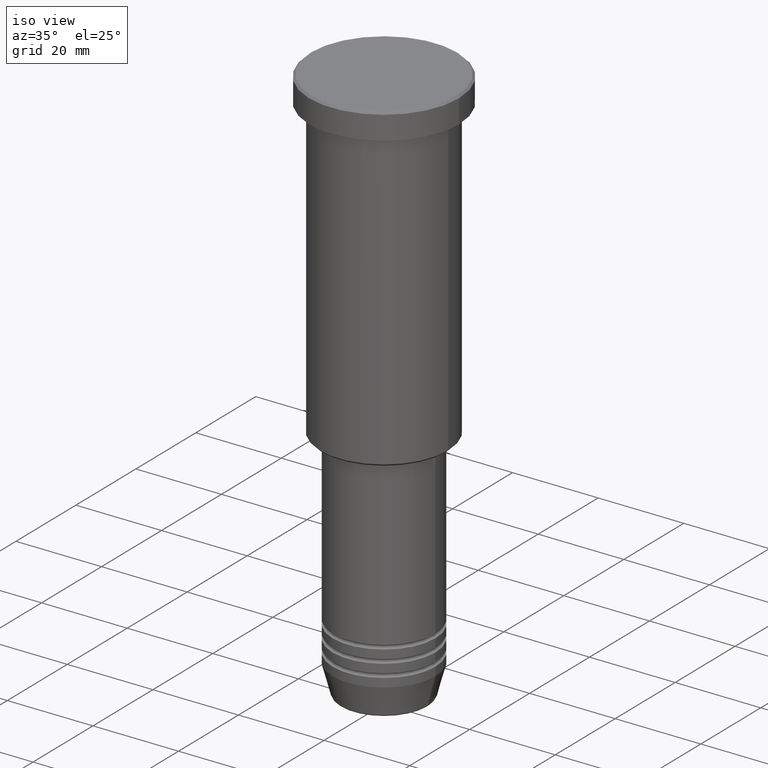
[diagram: clean part render]
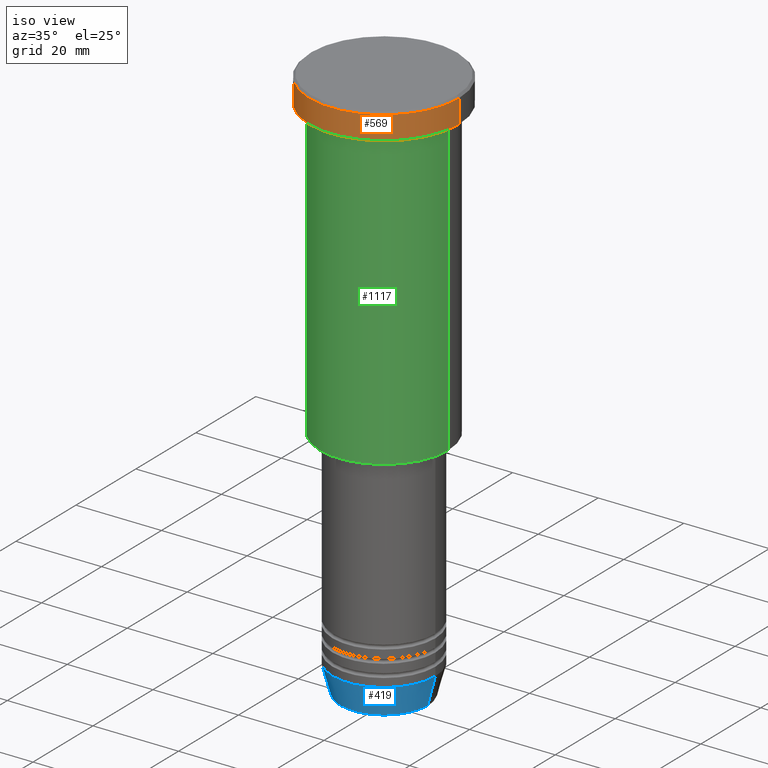
[diagram: same view with three faces highlighted in distinct colors, each labeled with its STEP entity id]
A machine part, iso view with three faces highlighted in distinct colors.
Their STEP definitions:

[orange] entity #569 — the highlighted cylindrical surface (partial cylindrical patch) has radius 17.5 mm, axis along (-0, -0, 1).
#18 = DIRECTION ( 'NONE',  ( 1.000000000000000000, 0.000000000000000000, 0.000000000000000000 ) ) ;
#89 = EDGE_CURVE ( 'NONE', #135, #1084, #361, .T. ) ;
#135 = VERTEX_POINT ( 'NONE', #488 ) ;
#200 = DIRECTION ( 'NONE',  ( -0.000000000000000000, -0.000000000000000000, 1.000000000000000000 ) ) ;
#216 = CARTESIAN_POINT ( 'NONE',  ( 17.50000000000000000, 0.000000000000000000, -0.5000000000000003331 ) ) ;
#263 = DIRECTION ( 'NONE',  ( -0.000000000000000000, -0.000000000000000000, 1.000000000000000000 ) ) ;
#315 = FACE_OUTER_BOUND ( 'NONE', #984, .T. ) ;
#343 = ORIENTED_EDGE ( 'NONE', *, *, #749, .F. ) ;
#361 = CIRCLE ( 'NONE', #662, 17.50000000000000000 ) ;
#372 = CARTESIAN_POINT ( 'NONE',  ( 17.50000000000000000, 0.000000000000000000, 0.000000000000000000 ) ) ;
#385 = ORIENTED_EDGE ( 'NONE', *, *, #89, .T. ) ;
#417 = CARTESIAN_POINT ( 'NONE',  ( -17.50000000000000000, 2.143131898507868248E-15, 0.000000000000000000 ) ) ;
#441 = VERTEX_POINT ( 'NONE', #1182 ) ;
#471 = CARTESIAN_POINT ( 'NONE',  ( 0.000000000000000000, 0.000000000000000000, -5.999999999999995559 ) ) ;
#488 = CARTESIAN_POINT ( 'NONE',  ( -17.50000000000000000, 2.143131898507868248E-15, -5.999999999999995559 ) ) ;
#569 = ADVANCED_FACE ( 'NONE', ( #315 ), #919, .T. ) ;
#620 = VERTEX_POINT ( 'NONE', #216 ) ;
#662 = AXIS2_PLACEMENT_3D ( 'NONE', #471, #263, #679 ) ;
#679 = DIRECTION ( 'NONE',  ( 1.000000000000000000, 0.000000000000000000, 0.000000000000000000 ) ) ;
#686 = DIRECTION ( 'NONE',  ( -0.000000000000000000, -0.000000000000000000, 1.000000000000000000 ) ) ;
#749 = EDGE_CURVE ( 'NONE', #135, #441, #965, .T. ) ;
#750 = DIRECTION ( 'NONE',  ( 1.000000000000000000, 0.000000000000000000, 0.000000000000000000 ) ) ;
#754 = CARTESIAN_POINT ( 'NONE',  ( 17.50000000000000000, 0.000000000000000000, -5.999999999999995559 ) ) ;
#790 = AXIS2_PLACEMENT_3D ( 'NONE', #834, #200, #750 ) ;
#791 = AXIS2_PLACEMENT_3D ( 'NONE', #1107, #844, #18 ) ;
#834 = CARTESIAN_POINT ( 'NONE',  ( 0.000000000000000000, 0.000000000000000000, 0.000000000000000000 ) ) ;
#844 = DIRECTION ( 'NONE',  ( 0.000000000000000000, 0.000000000000000000, -1.000000000000000000 ) ) ;
#901 = ORIENTED_EDGE ( 'NONE', *, *, #969, .T. ) ;
#912 = ORIENTED_EDGE ( 'NONE', *, *, #1024, .T. ) ;
#919 = CYLINDRICAL_SURFACE ( 'NONE', #790, 17.50000000000000000 ) ;
#965 = LINE ( 'NONE', #417, #1094 ) ;
#969 = EDGE_CURVE ( 'NONE', #1084, #620, #1181, .T. ) ;
#984 = EDGE_LOOP ( 'NONE', ( #343, #385, #901, #912 ) ) ;
#1024 = EDGE_CURVE ( 'NONE', #620, #441, #1133, .T. ) ;
#1071 = VECTOR ( 'NONE', #1085, 1000.000000000000000 ) ;
#1084 = VERTEX_POINT ( 'NONE', #754 ) ;
#1085 = DIRECTION ( 'NONE',  ( -0.000000000000000000, -0.000000000000000000, 1.000000000000000000 ) ) ;
#1094 = VECTOR ( 'NONE', #686, 1000.000000000000000 ) ;
#1107 = CARTESIAN_POINT ( 'NONE',  ( 0.000000000000000000, 0.000000000000000000, -0.5000000000000003331 ) ) ;
#1133 = CIRCLE ( 'NONE', #791, 17.50000000000000000 ) ;
#1181 = LINE ( 'NONE', #372, #1071 ) ;
#1182 = CARTESIAN_POINT ( 'NONE',  ( -17.50000000000000000, 2.143131898507868248E-15, -0.5000000000000003331 ) ) ;

[blue] entity #419 — the highlighted conical surface has half-angle 15 deg.
#2 = VERTEX_POINT ( 'NONE', #554 ) ;
#49 = DIRECTION ( 'NONE',  ( -0.2588190451025213501, 3.169619151431772337E-17, 0.9659258262890680902 ) ) ;
#50 = VECTOR ( 'NONE', #189, 1000.000000000000000 ) ;
#54 = CARTESIAN_POINT ( 'NONE',  ( -12.00000000000000000, 1.469576158976823947E-15, -124.0000000000000000 ) ) ;
#68 = AXIS2_PLACEMENT_3D ( 'NONE', #153, #699, #1055 ) ;
#71 = ORIENTED_EDGE ( 'NONE', *, *, #702, .T. ) ;
#103 = CIRCLE ( 'NONE', #68, 10.22365507213718949 ) ;
#153 = CARTESIAN_POINT ( 'NONE',  ( 0.000000000000000000, 0.000000000000000000, -130.6294095225512422 ) ) ;
#189 = DIRECTION ( 'NONE',  ( 0.2588190451025213501, 0.000000000000000000, 0.9659258262890680902 ) ) ;
#192 = ORIENTED_EDGE ( 'NONE', *, *, #693, .F. ) ;
#203 = VECTOR ( 'NONE', #49, 1000.000000000000000 ) ;
#240 = EDGE_CURVE ( 'NONE', #1057, #1129, #909, .T. ) ;
#327 = LINE ( 'NONE', #802, #50 ) ;
#347 = ORIENTED_EDGE ( 'NONE', *, *, #414, .T. ) ;
#382 = CONICAL_SURFACE ( 'NONE', #1035, 12.00000000000000000, 0.2617993877991500740 ) ;
#410 = EDGE_LOOP ( 'NONE', ( #192, #71, #347, #829 ) ) ;
#414 = EDGE_CURVE ( 'NONE', #2, #1129, #327, .T. ) ;
#419 = ADVANCED_FACE ( 'NONE', ( #982 ), #382, .T. ) ;
#458 = CARTESIAN_POINT ( 'NONE',  ( 0.000000000000000000, 0.000000000000000000, -124.0000000000000000 ) ) ;
#520 = LINE ( 'NONE', #54, #203 ) ;
#554 = CARTESIAN_POINT ( 'NONE',  ( 10.22365507213718949, 0.000000000000000000, -130.6294095225512422 ) ) ;
#627 = DIRECTION ( 'NONE',  ( 1.000000000000000000, 0.000000000000000000, 0.000000000000000000 ) ) ;
#656 = CARTESIAN_POINT ( 'NONE',  ( -10.22365507213718949, 1.360806402472382744E-15, -130.6294095225512422 ) ) ;
#693 = EDGE_CURVE ( 'NONE', #987, #1057, #520, .T. ) ;
#699 = DIRECTION ( 'NONE',  ( -0.000000000000000000, -0.000000000000000000, 1.000000000000000000 ) ) ;
#702 = EDGE_CURVE ( 'NONE', #987, #2, #103, .T. ) ;
#744 = DIRECTION ( 'NONE',  ( -0.000000000000000000, -0.000000000000000000, 1.000000000000000000 ) ) ;
#759 = AXIS2_PLACEMENT_3D ( 'NONE', #863, #744, #1104 ) ;
#802 = CARTESIAN_POINT ( 'NONE',  ( 12.00000000000000000, 0.000000000000000000, -124.0000000000000000 ) ) ;
#829 = ORIENTED_EDGE ( 'NONE', *, *, #240, .F. ) ;
#863 = CARTESIAN_POINT ( 'NONE',  ( 0.000000000000000000, 0.000000000000000000, -124.0000000000000000 ) ) ;
#909 = CIRCLE ( 'NONE', #759, 12.00000000000000000 ) ;
#918 = CARTESIAN_POINT ( 'NONE',  ( -12.00000000000000000, 1.469576158976823947E-15, -124.0000000000000000 ) ) ;
#955 = CARTESIAN_POINT ( 'NONE',  ( 12.00000000000000000, 0.000000000000000000, -124.0000000000000000 ) ) ;
#982 = FACE_OUTER_BOUND ( 'NONE', #410, .T. ) ;
#987 = VERTEX_POINT ( 'NONE', #656 ) ;
#1035 = AXIS2_PLACEMENT_3D ( 'NONE', #458, #1178, #627 ) ;
#1055 = DIRECTION ( 'NONE',  ( 1.000000000000000000, 0.000000000000000000, 0.000000000000000000 ) ) ;
#1057 = VERTEX_POINT ( 'NONE', #918 ) ;
#1104 = DIRECTION ( 'NONE',  ( 1.000000000000000000, 0.000000000000000000, 0.000000000000000000 ) ) ;
#1129 = VERTEX_POINT ( 'NONE', #955 ) ;
#1178 = DIRECTION ( 'NONE',  ( -0.000000000000000000, -0.000000000000000000, 1.000000000000000000 ) ) ;

[green] entity #1117 — the highlighted cylindrical surface (partial cylindrical patch) has radius 15 mm, axis along (-0, -0, 1).
#39 = EDGE_CURVE ( 'NONE', #608, #1176, #280, .T. ) ;
#59 = CARTESIAN_POINT ( 'NONE',  ( 15.00000000000000000, 0.000000000000000000, 0.000000000000000000 ) ) ;
#87 = ORIENTED_EDGE ( 'NONE', *, *, #472, .T. ) ;
#90 = DIRECTION ( 'NONE',  ( -0.000000000000000000, -0.000000000000000000, 1.000000000000000000 ) ) ;
#112 = ORIENTED_EDGE ( 'NONE', *, *, #275, .T. ) ;
#150 = EDGE_LOOP ( 'NONE', ( #935, #87, #112, #628 ) ) ;
#170 = DIRECTION ( 'NONE',  ( -0.000000000000000000, -0.000000000000000000, 1.000000000000000000 ) ) ;
#175 = LINE ( 'NONE', #902, #794 ) ;
#182 = DIRECTION ( 'NONE',  ( 1.000000000000000000, 0.000000000000000000, 0.000000000000000000 ) ) ;
#205 = AXIS2_PLACEMENT_3D ( 'NONE', #1083, #739, #182 ) ;
#275 = EDGE_CURVE ( 'NONE', #931, #1176, #966, .T. ) ;
#280 = CIRCLE ( 'NONE', #205, 15.00000000000000000 ) ;
#283 = AXIS2_PLACEMENT_3D ( 'NONE', #848, #493, #411 ) ;
#359 = AXIS2_PLACEMENT_3D ( 'NONE', #915, #170, #895 ) ;
#411 = DIRECTION ( 'NONE',  ( 1.000000000000000000, 0.000000000000000000, 0.000000000000000000 ) ) ;
#447 = CARTESIAN_POINT ( 'NONE',  ( 15.00000000000000000, 0.000000000000000000, -75.50000000000000000 ) ) ;
#472 = EDGE_CURVE ( 'NONE', #1029, #931, #582, .T. ) ;
#485 = CYLINDRICAL_SURFACE ( 'NONE', #283, 15.00000000000000000 ) ;
#493 = DIRECTION ( 'NONE',  ( -0.000000000000000000, -0.000000000000000000, 1.000000000000000000 ) ) ;
#519 = EDGE_CURVE ( 'NONE', #1029, #608, #175, .T. ) ;
#582 = CIRCLE ( 'NONE', #359, 15.00000000000000000 ) ;
#608 = VERTEX_POINT ( 'NONE', #667 ) ;
#628 = ORIENTED_EDGE ( 'NONE', *, *, #39, .F. ) ;
#667 = CARTESIAN_POINT ( 'NONE',  ( -15.00000000000000000, 1.836970198721029589E-15, -6.999999999999995559 ) ) ;
#737 = VECTOR ( 'NONE', #789, 1000.000000000000000 ) ;
#739 = DIRECTION ( 'NONE',  ( -0.000000000000000000, -0.000000000000000000, 1.000000000000000000 ) ) ;
#768 = CARTESIAN_POINT ( 'NONE',  ( 15.00000000000000000, 0.000000000000000000, -6.999999999999995559 ) ) ;
#789 = DIRECTION ( 'NONE',  ( -0.000000000000000000, -0.000000000000000000, 1.000000000000000000 ) ) ;
#794 = VECTOR ( 'NONE', #90, 1000.000000000000000 ) ;
#838 = FACE_OUTER_BOUND ( 'NONE', #150, .T. ) ;
#848 = CARTESIAN_POINT ( 'NONE',  ( 0.000000000000000000, 0.000000000000000000, 0.000000000000000000 ) ) ;
#895 = DIRECTION ( 'NONE',  ( -1.000000000000000000, 0.000000000000000000, 0.000000000000000000 ) ) ;
#902 = CARTESIAN_POINT ( 'NONE',  ( -15.00000000000000000, 1.836970198721029589E-15, 0.000000000000000000 ) ) ;
#915 = CARTESIAN_POINT ( 'NONE',  ( 0.000000000000000000, 0.000000000000000000, -75.50000000000000000 ) ) ;
#931 = VERTEX_POINT ( 'NONE', #447 ) ;
#935 = ORIENTED_EDGE ( 'NONE', *, *, #519, .F. ) ;
#966 = LINE ( 'NONE', #59, #737 ) ;
#1013 = CARTESIAN_POINT ( 'NONE',  ( -15.00000000000000000, 1.836970198721029589E-15, -75.50000000000000000 ) ) ;
#1029 = VERTEX_POINT ( 'NONE', #1013 ) ;
#1083 = CARTESIAN_POINT ( 'NONE',  ( 0.000000000000000000, 0.000000000000000000, -6.999999999999995559 ) ) ;
#1117 = ADVANCED_FACE ( 'NONE', ( #838 ), #485, .T. ) ;
#1176 = VERTEX_POINT ( 'NONE', #768 ) ;